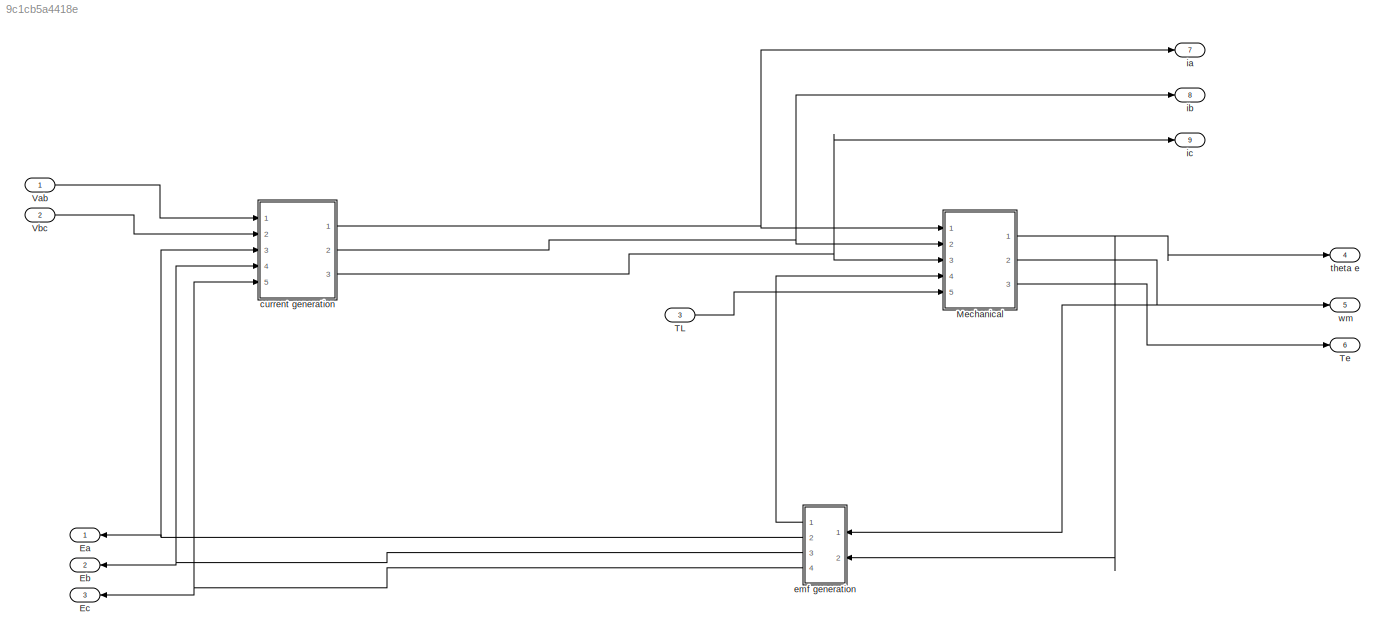
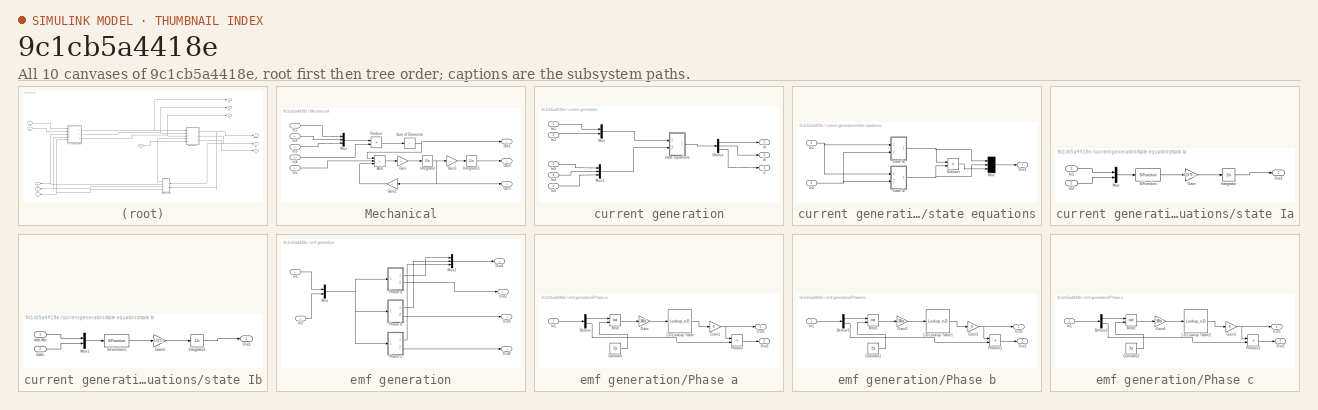
[diagram: thumbnail index - all 10 canvases of the model, root first then tree order]
MODEL slx_9c1cb5a4418e
KIND model
CONFIG AbsTol = auto
CONFIG EnableMultiTasking = off
CONFIG FixedStep = auto
CONFIG MaxStep = auto
CONFIG MinStep = auto
CONFIG RelTol = 1e-3
CONFIG SampleTimeConstraint = Unconstrained
CONFIG SolverName = VariableStepAuto
CONFIG StartTime = 0.0
CONFIG StopTime = 10.0
BLOCK [Outport] Ea
  NameLocation = top
BLOCK [Outport] Eb
  NameLocation = top
  Port = 2
BLOCK [Outport] Ec
  NameLocation = top
  Port = 3
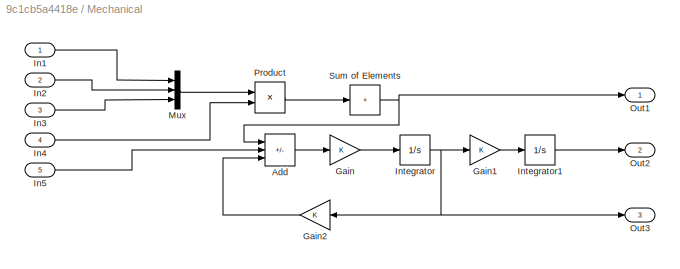
BLOCK [SubSystem] Mechanical
  Ports = [5, 3]
  RequestExecContextInheritance = off
BLOCK [Sum] Mechanical/Add
  IconShape = rectangular
  Inputs = +--
  Ports = [3, 1]
BLOCK [Gain] Mechanical/Gain
BLOCK [Gain] Mechanical/Gain1
BLOCK [Gain] Mechanical/Gain2
  NameLocation = top
BLOCK [Inport] Mechanical/In1
BLOCK [Inport] Mechanical/In2
  Port = 2
BLOCK [Inport] Mechanical/In3
  Port = 3
BLOCK [Inport] Mechanical/In4
  Port = 4
BLOCK [Inport] Mechanical/In5
  Port = 5
BLOCK [Integrator] Mechanical/Integrator
  Ports = [1, 1]
BLOCK [Integrator] Mechanical/Integrator1
  Ports = [1, 1]
BLOCK [Mux] Mechanical/Mux
  DisplayOption = bar
  Inputs = 3
  Ports = [3, 1]
BLOCK [Outport] Mechanical/Out1
BLOCK [Outport] Mechanical/Out2
  Port = 2
BLOCK [Outport] Mechanical/Out3
  Port = 3
BLOCK [Product] Mechanical/Product
  Ports = [2, 1]
BLOCK [Sum] Mechanical/Sum of Elements
  IconShape = rectangular
  Inputs = +
  Ports = [1, 1]
BLOCK [Inport] TL
  Port = 3
BLOCK [Outport] Te
  Port = 6
BLOCK [Inport] Vab
BLOCK [Inport] Vbc
  Port = 2
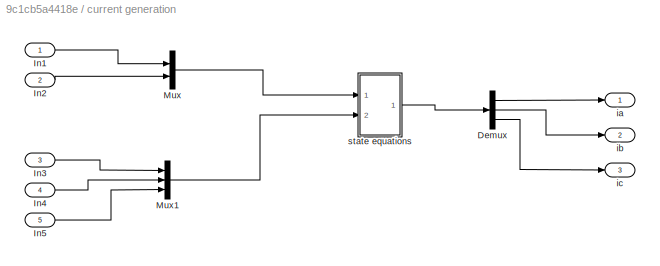
BLOCK [SubSystem] current generation
  Ports = [5, 3]
  RequestExecContextInheritance = off
BLOCK [Demux] current generation/Demux
  Outputs = 3
  Ports = [1, 3]
BLOCK [Inport] current generation/In1
BLOCK [Inport] current generation/In2
  Port = 2
BLOCK [Inport] current generation/In3
  Port = 3
BLOCK [Inport] current generation/In4
  Port = 4
BLOCK [Inport] current generation/In5
  Port = 5
BLOCK [Mux] current generation/Mux
  DisplayOption = bar
  Inputs = 2
  Ports = [2, 1]
BLOCK [Mux] current generation/Mux1
  DisplayOption = bar
  Inputs = 3
  Ports = [3, 1]
BLOCK [Outport] current generation/ia
BLOCK [Outport] current generation/ib
  Port = 2
BLOCK [Outport] current generation/ic
  Port = 3
BLOCK [SubSystem] current generation/state equations
  Ports = [2, 1]
  RequestExecContextInheritance = off
BLOCK [Inport] current generation/state equations/In1
BLOCK [Inport] current generation/state equations/In2
  Port = 2
BLOCK [Mux] current generation/state equations/Mux
  DisplayOption = bar
  Inputs = 3
  Ports = [3, 1]
BLOCK [Outport] current generation/state equations/Out1
BLOCK [Sum] current generation/state equations/Subtract
  IconShape = rectangular
  Inputs = --
  Ports = [2, 1]
BLOCK [SubSystem] current generation/state equations/state Ia
  Ports = [2, 1]
  RequestExecContextInheritance = off
BLOCK [Gain] current generation/state equations/state Ia/Gain
  Gain = 1/(3*0.335)
BLOCK [Inport] current generation/state equations/state Ia/In1
BLOCK [Inport] current generation/state equations/state Ia/In2
  Port = 2
BLOCK [Integrator] current generation/state equations/state Ia/Integrator
  Ports = [1, 1]
BLOCK [Mux] current generation/state equations/state Ia/Mux
  DisplayOption = bar
  Inputs = 2
  Ports = [2, 1]
BLOCK [Outport] current generation/state equations/state Ia/Out1
BLOCK [S-Function] current generation/state equations/state Ia/S-Function
  EnableBusSupport = off
  FunctionName = Fcn
  Ports = [1, 1]
  SFcnIsStateOwnerBlock = off
  SFunctionDeploymentMode = off
BLOCK [SubSystem] current generation/state equations/state Ib
  Ports = [2, 1]
  RequestExecContextInheritance = off
BLOCK [Inport] current generation/state equations/state Ib/Eabc
  Port = 2
BLOCK [Gain] current generation/state equations/state Ib/Gain1
  Gain = 1/(3*L)
BLOCK [Integrator] current generation/state equations/state Ib/Integrator1
  Ports = [1, 1]
BLOCK [Mux] current generation/state equations/state Ib/Mux1
  DisplayOption = bar
  Inputs = 2
  Ports = [2, 1]
BLOCK [Outport] current generation/state equations/state Ib/Out1
BLOCK [S-Function] current generation/state equations/state Ib/S-Function1
  EnableBusSupport = off
  FunctionName = Fcn
  Ports = [1, 1]
  SFcnIsStateOwnerBlock = off
  SFunctionDeploymentMode = off
BLOCK [Inport] current generation/state equations/state Ib/Vab,Vbc
BLOCK [SubSystem] emf generation
  NameLocation = top
  Ports = [2, 4]
  RequestExecContextInheritance = off
BLOCK [Inport] emf generation/In1
BLOCK [Inport] emf generation/In2
  Port = 2
BLOCK [Mux] emf generation/Mux
  DisplayOption = bar
  Inputs = 2
  Ports = [2, 1]
BLOCK [Mux] emf generation/Mux1
  DisplayOption = bar
  Inputs = 3
  Ports = [3, 1]
BLOCK [Outport] emf generation/Out1
BLOCK [Outport] emf generation/Out2
  Port = 2
BLOCK [Outport] emf generation/Out3
  Port = 3
BLOCK [Outport] emf generation/Out4
  Port = 4
BLOCK [SubSystem] emf generation/Phase a
  Ports = [1, 2]
  RequestExecContextInheritance = off
BLOCK [Lookup_n-D] emf generation/Phase a/1-D Lookup Table
  BreakpointsForDimension1 = [-5:5]
  InputPortMap = u0
  InternalRulePriority = Speed
  NumberOfTableDimensions = 1
  Ports = [1, 1]
  RndMeth = Simplest
  Table = tanh([-5:5])
BLOCK [Constant] emf generation/Phase a/Constant
  Value = 2*pi
BLOCK [Demux] emf generation/Phase a/Demux
  Outputs = 2
  Ports = [1, 2]
BLOCK [Gain] emf generation/Phase a/Gain
  Gain = 180/pi
BLOCK [Gain] emf generation/Phase a/Gain1
BLOCK [Inport] emf generation/Phase a/In1
BLOCK [Math] emf generation/Phase a/Mod
  Operator = mod
  Ports = [2, 1]
BLOCK [Outport] emf generation/Phase a/Out1
BLOCK [Outport] emf generation/Phase a/Out2
  Port = 2
BLOCK [Product] emf generation/Phase a/Product
  Ports = [2, 1]
BLOCK [SubSystem] emf generation/Phase b
  Ports = [1, 2]
  RequestExecContextInheritance = off
BLOCK [Lookup_n-D] emf generation/Phase b/1-D Lookup Table1
  BreakpointsForDimension1 = [-5:5]
  InputPortMap = u0
  InternalRulePriority = Speed
  NumberOfTableDimensions = 1
  Ports = [1, 1]
  RndMeth = Simplest
  Table = tanh([-5:5])
BLOCK [Constant] emf generation/Phase b/Constant1
  Value = 2*pi
BLOCK [Demux] emf generation/Phase b/Demux1
  Outputs = 2
  Ports = [1, 2]
BLOCK [Gain] emf generation/Phase b/Gain2
  Gain = 180/pi
BLOCK [Gain] emf generation/Phase b/Gain3
BLOCK [Inport] emf generation/Phase b/In1
BLOCK [Math] emf generation/Phase b/Mod1
  Operator = mod
  Ports = [2, 1]
BLOCK [Outport] emf generation/Phase b/Out1
BLOCK [Outport] emf generation/Phase b/Out2
  Port = 2
BLOCK [Product] emf generation/Phase b/Product1
  Ports = [2, 1]
BLOCK [SubSystem] emf generation/Phase c
  Ports = [1, 2]
  RequestExecContextInheritance = off
BLOCK [Lookup_n-D] emf generation/Phase c/1-D Lookup Table2
  BreakpointsForDimension1 = [-5:5]
  InputPortMap = u0
  InternalRulePriority = Speed
  NumberOfTableDimensions = 1
  Ports = [1, 1]
  RndMeth = Simplest
  Table = tanh([-5:5])
BLOCK [Constant] emf generation/Phase c/Constant2
  Value = 2*pi
BLOCK [Demux] emf generation/Phase c/Demux2
  Outputs = 2
  Ports = [1, 2]
BLOCK [Gain] emf generation/Phase c/Gain4
  Gain = 180/pi
BLOCK [Gain] emf generation/Phase c/Gain5
BLOCK [Inport] emf generation/Phase c/In1
BLOCK [Math] emf generation/Phase c/Mod2
  Operator = mod
  Ports = [2, 1]
BLOCK [Outport] emf generation/Phase c/Out1
BLOCK [Outport] emf generation/Phase c/Out2
  Port = 2
BLOCK [Product] emf generation/Phase c/Product2
  Ports = [2, 1]
BLOCK [Outport] ia
  Port = 7
BLOCK [Outport] ib
  Port = 8
BLOCK [Outport] ic
  Port = 9
BLOCK [Outport] theta e
  Port = 4
BLOCK [Outport] wm
  Port = 5
LINE Mechanical/Add:1 -> Mechanical/Gain:1
LINE Mechanical/Gain1:1 -> Mechanical/Integrator1:1
LINE Mechanical/Gain2:1 -> Mechanical/Add:3
LINE Mechanical/Gain:1 -> Mechanical/Integrator:1
LINE Mechanical/In1:1 -> Mechanical/Mux:1
LINE Mechanical/In2:1 -> Mechanical/Mux:2
LINE Mechanical/In3:1 -> Mechanical/Mux:3
LINE Mechanical/In4:1 -> Mechanical/Product:2
LINE Mechanical/In5:1 -> Mechanical/Add:2
LINE Mechanical/Integrator1:1 -> Mechanical/Out2:1
NET Mechanical/Integrator:1 -> Mechanical/Gain1:1, Mechanical/Gain2:1, Mechanical/Out3:1
LINE Mechanical/Mux:1 -> Mechanical/Product:1
LINE Mechanical/Product:1 -> Mechanical/Sum of Elements:1
NET Mechanical/Sum of Elements:1 -> Mechanical/Add:1, Mechanical/Out1:1
NET Mechanical:1 -> emf generation:2, theta e:1
NET Mechanical:2 -> emf generation:1, wm:1
LINE Mechanical:3 -> Te:1
LINE TL:1 -> Mechanical:5
LINE Vab:1 -> current generation:1
LINE Vbc:1 -> current generation:2
LINE current generation/Demux:1 -> current generation/ia:1
LINE current generation/Demux:2 -> current generation/ib:1
LINE current generation/Demux:3 -> current generation/ic:1
LINE current generation/In1:1 -> current generation/Mux:1
LINE current generation/In2:1 -> current generation/Mux:2
LINE current generation/In3:1 -> current generation/Mux1:1
LINE current generation/In4:1 -> current generation/Mux1:2
LINE current generation/In5:1 -> current generation/Mux1:3
LINE current generation/Mux1:1 -> current generation/state equations:2
LINE current generation/Mux:1 -> current generation/state equations:1
NET current generation/state equations/In1:1 -> current generation/state equations/state Ia:1, current generation/state equations/state Ib:1
NET current generation/state equations/In2:1 -> current generation/state equations/state Ia:2, current generation/state equations/state Ib:2
LINE current generation/state equations/Mux:1 -> current generation/state equations/Out1:1
LINE current generation/state equations/Subtract:1 -> current generation/state equations/Mux:3
LINE current generation/state equations/state Ia/Gain:1 -> current generation/state equations/state Ia/Integrator:1
LINE current generation/state equations/state Ia/In1:1 -> current generation/state equations/state Ia/Mux:1
LINE current generation/state equations/state Ia/In2:1 -> current generation/state equations/state Ia/Mux:2
LINE current generation/state equations/state Ia/Integrator:1 -> current generation/state equations/state Ia/Out1:1
LINE current generation/state equations/state Ia/Mux:1 -> current generation/state equations/state Ia/S-Function:1
LINE current generation/state equations/state Ia/S-Function:1 -> current generation/state equations/state Ia/Gain:1
NET current generation/state equations/state Ia:1 -> current generation/state equations/Mux:1, current generation/state equations/Subtract:1
LINE current generation/state equations/state Ib/Eabc:1 -> current generation/state equations/state Ib/Mux1:2
LINE current generation/state equations/state Ib/Gain1:1 -> current generation/state equations/state Ib/Integrator1:1
LINE current generation/state equations/state Ib/Integrator1:1 -> current generation/state equations/state Ib/Out1:1
LINE current generation/state equations/state Ib/Mux1:1 -> current generation/state equations/state Ib/S-Function1:1
LINE current generation/state equations/state Ib/S-Function1:1 -> current generation/state equations/state Ib/Gain1:1
LINE current generation/state equations/state Ib/Vab,Vbc:1 -> current generation/state equations/state Ib/Mux1:1
NET current generation/state equations/state Ib:1 -> current generation/state equations/Mux:2, current generation/state equations/Subtract:2
LINE current generation/state equations:1 -> current generation/Demux:1
NET current generation:1 -> Mechanical:1, ia:1
NET current generation:2 -> Mechanical:2, ib:1
NET current generation:3 -> Mechanical:3, ic:1
LINE emf generation/In1:1 -> emf generation/Mux:1
LINE emf generation/In2:1 -> emf generation/Mux:2
LINE emf generation/Mux1:1 -> emf generation/Out1:1
NET emf generation/Mux:1 -> emf generation/Phase a:1, emf generation/Phase b:1, emf generation/Phase c:1
LINE emf generation/Phase a/1-D Lookup Table:1 -> emf generation/Phase a/Gain1:1
LINE emf generation/Phase a/Constant:1 -> emf generation/Phase a/Mod:2
LINE emf generation/Phase a/Demux:1 -> emf generation/Phase a/Mod:1
LINE emf generation/Phase a/Demux:2 -> emf generation/Phase a/Product:2
NET emf generation/Phase a/Gain1:1 -> emf generation/Phase a/Out1:1, emf generation/Phase a/Product:1
LINE emf generation/Phase a/Gain:1 -> emf generation/Phase a/1-D Lookup Table:1
LINE emf generation/Phase a/In1:1 -> emf generation/Phase a/Demux:1
LINE emf generation/Phase a/Mod:1 -> emf generation/Phase a/Gain:1
LINE emf generation/Phase a/Product:1 -> emf generation/Phase a/Out2:1
LINE emf generation/Phase a:1 -> emf generation/Mux1:1
LINE emf generation/Phase a:2 -> emf generation/Out2:1
LINE emf generation/Phase b/1-D Lookup Table1:1 -> emf generation/Phase b/Gain3:1
LINE emf generation/Phase b/Constant1:1 -> emf generation/Phase b/Mod1:2
LINE emf generation/Phase b/Demux1:1 -> emf generation/Phase b/Mod1:1
LINE emf generation/Phase b/Demux1:2 -> emf generation/Phase b/Product1:2
LINE emf generation/Phase b/Gain2:1 -> emf generation/Phase b/1-D Lookup Table1:1
NET emf generation/Phase b/Gain3:1 -> emf generation/Phase b/Out1:1, emf generation/Phase b/Product1:1
LINE emf generation/Phase b/In1:1 -> emf generation/Phase b/Demux1:1
LINE emf generation/Phase b/Mod1:1 -> emf generation/Phase b/Gain2:1
LINE emf generation/Phase b/Product1:1 -> emf generation/Phase b/Out2:1
LINE emf generation/Phase b:1 -> emf generation/Mux1:2
LINE emf generation/Phase b:2 -> emf generation/Out3:1
LINE emf generation/Phase c/1-D Lookup Table2:1 -> emf generation/Phase c/Gain5:1
LINE emf generation/Phase c/Constant2:1 -> emf generation/Phase c/Mod2:2
LINE emf generation/Phase c/Demux2:1 -> emf generation/Phase c/Mod2:1
LINE emf generation/Phase c/Demux2:2 -> emf generation/Phase c/Product2:2
LINE emf generation/Phase c/Gain4:1 -> emf generation/Phase c/1-D Lookup Table2:1
NET emf generation/Phase c/Gain5:1 -> emf generation/Phase c/Out1:1, emf generation/Phase c/Product2:1
LINE emf generation/Phase c/In1:1 -> emf generation/Phase c/Demux2:1
LINE emf generation/Phase c/Mod2:1 -> emf generation/Phase c/Gain4:1
LINE emf generation/Phase c/Product2:1 -> emf generation/Phase c/Out2:1
LINE emf generation/Phase c:1 -> emf generation/Mux1:3
LINE emf generation/Phase c:2 -> emf generation/Out4:1
LINE emf generation:1 -> Mechanical:4
NET emf generation:2 -> Ea:1, current generation:3
NET emf generation:3 -> Eb:1, current generation:4
NET emf generation:4 -> Ec:1, current generation:5
note: NET lines group one-source signal fan-out (src -> all destinations, sorted); 1:1 wires keep LINE
